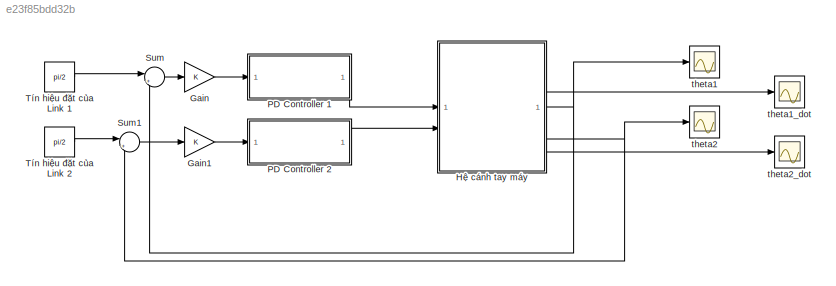
MODEL slx_e23f85bdd32b
KIND model
CONFIG AbsTol = auto
CONFIG EnableMultiTasking = off
CONFIG FixedStep = auto
CONFIG MaxStep = auto
CONFIG MinStep = auto
CONFIG RelTol = 1e-3
CONFIG SampleTimeConstraint = Unconstrained
CONFIG SolverName = VariableStepAuto
CONFIG StartTime = 0.0
CONFIG StopTime = 3
BLOCK [Gain] Gain
BLOCK [Gain] Gain1
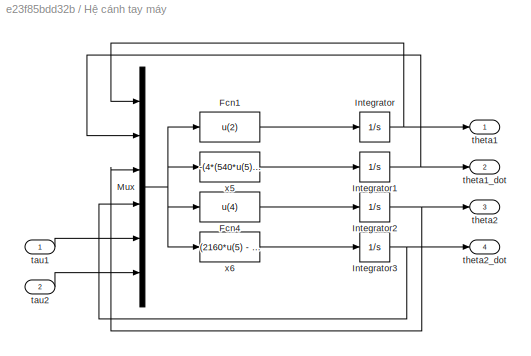
BLOCK [SubSystem] Hệ cánh tay máy
BLOCK [Fcn] Hệ cánh tay máy/Fcn1
  Expr = u(2)
BLOCK [Fcn] Hệ cánh tay máy/Fcn4
  Expr = u(4)
BLOCK [Integrator] Hệ cánh tay máy/Integrator
  InitialCondition = theta1_init
BLOCK [Integrator] Hệ cánh tay máy/Integrator1
  InitialCondition = theta1_dot_init
BLOCK [Integrator] Hệ cánh tay máy/Integrator2
  InitialCondition = theta2_init
BLOCK [Integrator] Hệ cánh tay máy/Integrator3
  InitialCondition = theta2_dot_init
BLOCK [Mux] Hệ cánh tay máy/Mux
  DisplayOption = bar
  Inputs = 6
BLOCK [Inport] Hệ cánh tay máy/tau1
BLOCK [Inport] Hệ cánh tay máy/tau2
  Port = 2
BLOCK [Outport] Hệ cánh tay máy/theta1
BLOCK [Outport] Hệ cánh tay máy/theta1_dot
  Port = 2
BLOCK [Outport] Hệ cánh tay máy/theta2
  Port = 3
BLOCK [Outport] Hệ cánh tay máy/theta2_dot
  Port = 4
BLOCK [Fcn] Hệ cánh tay máy/x5
  Expr = -(4*(540*u(5) - 540*u(6) + 98*cos(u(1) + 2*u(3)) - 3871*cos(u(1)) + 54*u(2)^2*sin(u(3)) + 54*u(4)^2*sin(u(3)) + 5*u(2)^2*sin(2*u(3)) - 100*u(6)*cos(u(3)) + 108*u(2)*u(4)*sin(u(3))))/(5*(4*cos(2*u(3)) - 347))
BLOCK [Fcn] Hệ cánh tay máy/x6
  Expr = (2160*u(5) - 5410*u(6) - 1470*cos(u(1) - u(3)) + 392*cos(u(1) + 2*u(3)) + 4900*cos(u(1) + u(3)) - 15484*cos(u(1)) + 541*u(2)^2*sin(u(3)) + 216*u(4)^2*sin(u(3)) + 40*u(2)^2*sin(2*u(3)) + 20*u(4)^2*sin(2*u(3)) + 400*u(5)*cos(u(3)) - 800*u(6)*cos(u(3)) + 432*u(2)*u(4)*sin(u(3)) + 40*u(2)*u(4)*sin(2*u(3)))/(5*(4*cos(2*u(3)) - 347))
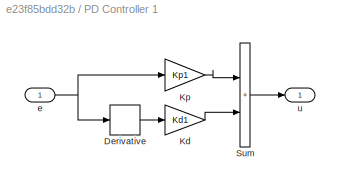
BLOCK [SubSystem] PD Controller 1
BLOCK [Derivative] PD Controller 1/Derivative
BLOCK [Gain] PD Controller 1/Kd
  Gain = Kd1
BLOCK [Gain] PD Controller 1/Kp
  Gain = Kp1
BLOCK [Sum] PD Controller 1/Sum
  IconShape = rectangular
BLOCK [Inport] PD Controller 1/e
BLOCK [Outport] PD Controller 1/u
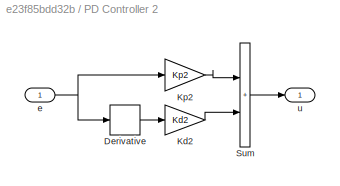
BLOCK [SubSystem] PD Controller 2
BLOCK [Derivative] PD Controller 2/Derivative
BLOCK [Gain] PD Controller 2/Kd2
  Gain = Kd2
BLOCK [Gain] PD Controller 2/Kp2
  Gain = Kp2
BLOCK [Sum] PD Controller 2/Sum
  IconShape = rectangular
BLOCK [Inport] PD Controller 2/e
BLOCK [Outport] PD Controller 2/u
BLOCK [Sum] Sum
  Inputs = |+-
  NameLocation = top
BLOCK [Sum] Sum1
  Inputs = |+-
BLOCK [Constant] Tín hiệu đặt của Link 1
  Value = pi/2
BLOCK [Constant] Tín hiệu đặt của Link 2
  Value = pi/2
BLOCK [Scope] theta1
  Floating = off
  NumInputPorts = 1
  ScopeSpecificationString = Simulink.scopes.TimeScopeBlockCfg('CurrentConfiguration', extmgr.ConfigurationSet(extmgr.Configuration('Core','General UI',true),extmgr.Configuration('Core','Source UI',true),extmgr.Configuration('Sources','WiredSimulink',true),extmgr.Configuration('Visuals','Time Domain',true,'SerializedDisplays',{struct('MinYLimReal','-0.37217','MaxYLimReal','3.34957','YLabelReal','','MinYLimMag','0.00000','MaxY...<+1414ch>
BLOCK [Scope] theta1_dot
  Floating = off
  NumInputPorts = 1
  ScopeSpecificationString = Simulink.scopes.TimeScopeBlockCfg('CurrentConfiguration', extmgr.ConfigurationSet(extmgr.Configuration('Core','General UI',true),extmgr.Configuration('Core','Source UI',true),extmgr.Configuration('Sources','WiredSimulink',true,'DataLoggingVariableName','ScopeData1'),extmgr.Configuration('Visuals','Time Domain',true,'SerializedDisplays',{struct('MinYLimReal','-0.80165','MaxYLimReal','6.02705','YLab...<+1403ch>
BLOCK [Scope] theta2
  Floating = off
  NumInputPorts = 1
  ScopeSpecificationString = Simulink.scopes.TimeScopeBlockCfg('CurrentConfiguration', extmgr.ConfigurationSet(extmgr.Configuration('Core','General UI',true),extmgr.Configuration('Core','Source UI',true),extmgr.Configuration('Sources','WiredSimulink',true,'DataLoggingVariableName','ScopeData2'),extmgr.Configuration('Visuals','Time Domain',true,'SerializedDisplays',{struct('MinYLimReal','-0.1988','MaxYLimReal','1.78918','YLabe...<+1404ch>
BLOCK [Scope] theta2_dot
  Floating = off
  NumInputPorts = 1
  ScopeSpecificationString = Simulink.scopes.TimeScopeBlockCfg('CurrentConfiguration', extmgr.ConfigurationSet(extmgr.Configuration('Core','General UI',true),extmgr.Configuration('Core','Source UI',true),extmgr.Configuration('Sources','WiredSimulink',true,'DataLoggingVariableName','ScopeData3'),extmgr.Configuration('Visuals','Time Domain',true,'SerializedDisplays',{struct('MinYLimReal','-0.60456','MaxYLimReal','5.43937','YLab...<+1405ch>
LINE Gain1:1 -> PD Controller 2:1
LINE Gain:1 -> PD Controller 1:1
LINE Hệ cánh tay máy/Fcn1:1 -> Hệ cánh tay máy/Integrator:1
LINE Hệ cánh tay máy/Fcn4:1 -> Hệ cánh tay máy/Integrator2:1
NET Hệ cánh tay máy/Integrator1:1 -> Hệ cánh tay máy/Mux:2, Hệ cánh tay máy/theta1_dot:1
NET Hệ cánh tay máy/Integrator2:1 -> Hệ cánh tay máy/Mux:3, Hệ cánh tay máy/theta2:1
NET Hệ cánh tay máy/Integrator3:1 -> Hệ cánh tay máy/Mux:4, Hệ cánh tay máy/theta2_dot:1
NET Hệ cánh tay máy/Integrator:1 -> Hệ cánh tay máy/Mux:1, Hệ cánh tay máy/theta1:1
NET Hệ cánh tay máy/Mux:1 -> Hệ cánh tay máy/Fcn1:1, Hệ cánh tay máy/Fcn4:1, Hệ cánh tay máy/x5:1, Hệ cánh tay máy/x6:1
LINE Hệ cánh tay máy/tau1:1 -> Hệ cánh tay máy/Mux:5
LINE Hệ cánh tay máy/tau2:1 -> Hệ cánh tay máy/Mux:6
LINE Hệ cánh tay máy/x5:1 -> Hệ cánh tay máy/Integrator1:1
LINE Hệ cánh tay máy/x6:1 -> Hệ cánh tay máy/Integrator3:1
NET Hệ cánh tay máy:1 -> Sum:2, theta1:1
LINE Hệ cánh tay máy:2 -> theta1_dot:1
NET Hệ cánh tay máy:3 -> Sum1:2, theta2:1
LINE Hệ cánh tay máy:4 -> theta2_dot:1
LINE PD Controller 1/Derivative:1 -> PD Controller 1/Kd:1
LINE PD Controller 1/Kd:1 -> PD Controller 1/Sum:2
LINE PD Controller 1/Kp:1 -> PD Controller 1/Sum:1
LINE PD Controller 1/Sum:1 -> PD Controller 1/u:1
NET PD Controller 1/e:1 -> PD Controller 1/Derivative:1, PD Controller 1/Kp:1
LINE PD Controller 1:1 -> Hệ cánh tay máy:1
LINE PD Controller 2/Derivative:1 -> PD Controller 2/Kd2:1
LINE PD Controller 2/Kd2:1 -> PD Controller 2/Sum:2
LINE PD Controller 2/Kp2:1 -> PD Controller 2/Sum:1
LINE PD Controller 2/Sum:1 -> PD Controller 2/u:1
NET PD Controller 2/e:1 -> PD Controller 2/Derivative:1, PD Controller 2/Kp2:1
LINE PD Controller 2:1 -> Hệ cánh tay máy:2
LINE Sum1:1 -> Gain1:1
LINE Sum:1 -> Gain:1
LINE Tín hiệu đặt của Link 1:1 -> Sum:1
LINE Tín hiệu đặt của Link 2:1 -> Sum1:1
note: NET lines group one-source signal fan-out (src -> all destinations, sorted); 1:1 wires keep LINE
